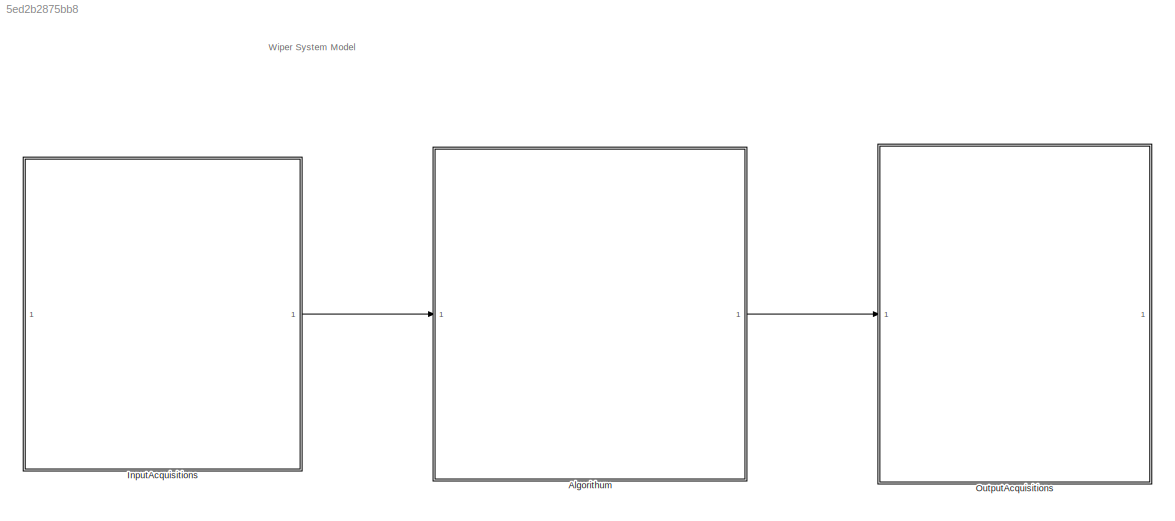
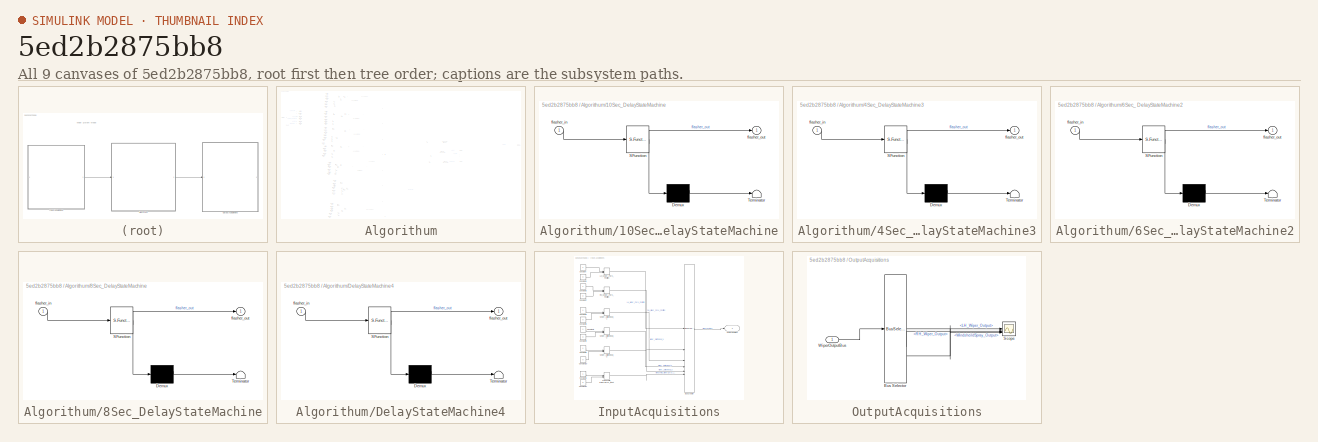
[diagram: thumbnail index - all 9 canvases of the model, root first then tree order]
MODEL slx_5ed2b2875bb8
KIND model
CONFIG AbsTol = auto
CONFIG EnableMultiTasking = off
CONFIG FixedStep = auto
CONFIG MaxStep = auto
CONFIG MinStep = auto
CONFIG PreLoadFcn = %Load Wiper Input & Output Bus\nload('Wiper_InputOutput_Bus.mat');
CONFIG RelTol = 1e-3
CONFIG SampleTimeConstraint = Unconstrained
CONFIG SolverName = VariableStepAuto
CONFIG StartTime = 0.0
CONFIG StopTime = inf
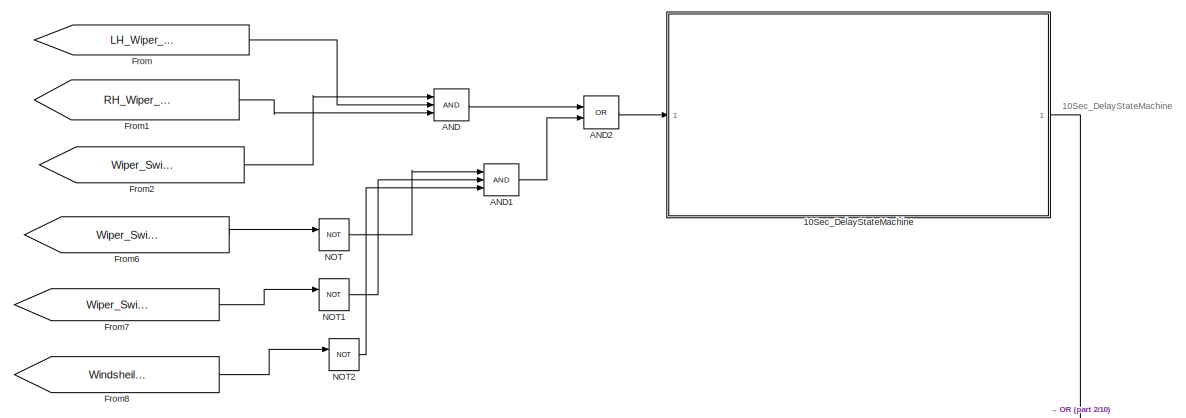
[diagram: Algorithum - part 1/10, top left region]
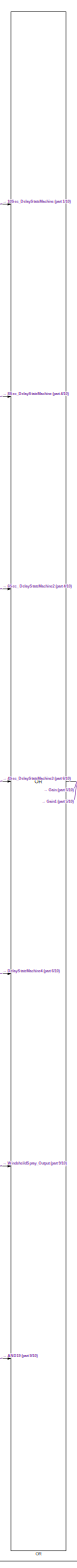
[diagram: Algorithum - part 2/10, center side, full height]
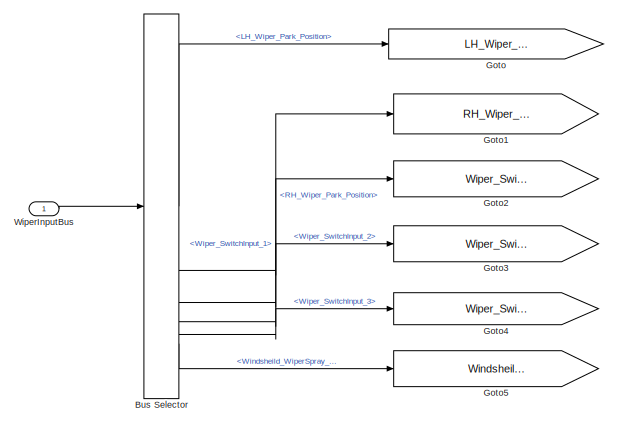
[diagram: Algorithum - part 3/10, top left region]
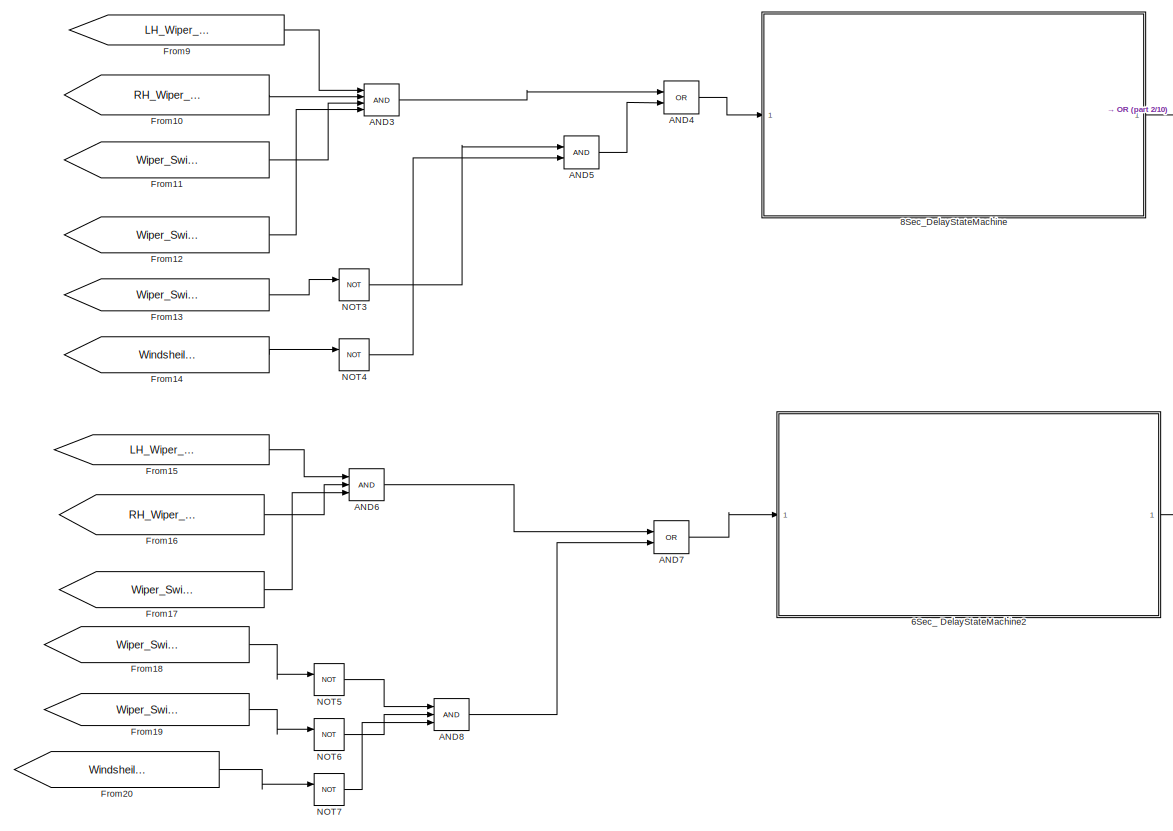
[diagram: Algorithum - part 4/10, top left region]
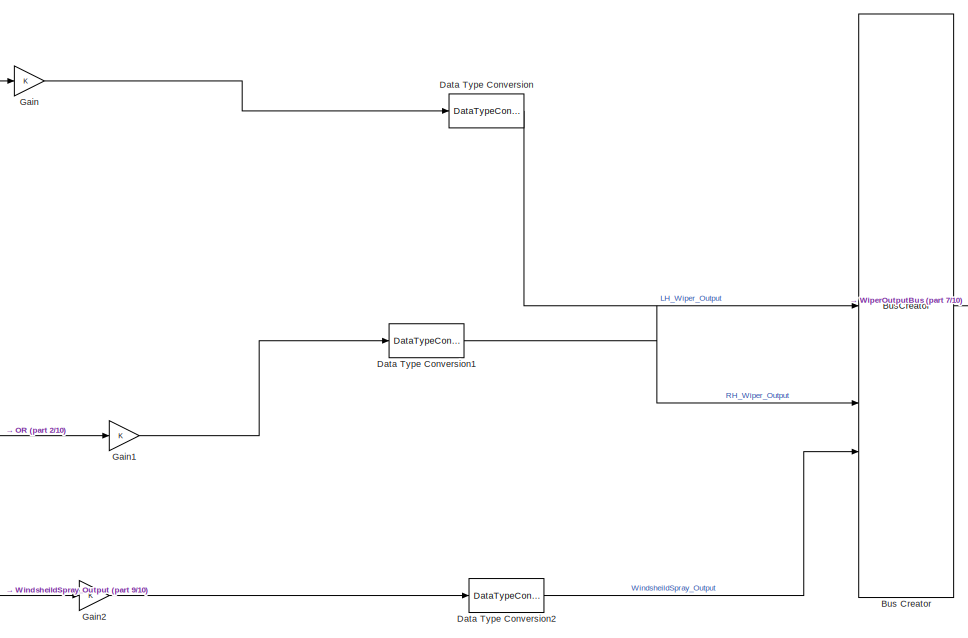
[diagram: Algorithum - part 5/10, middle right region]
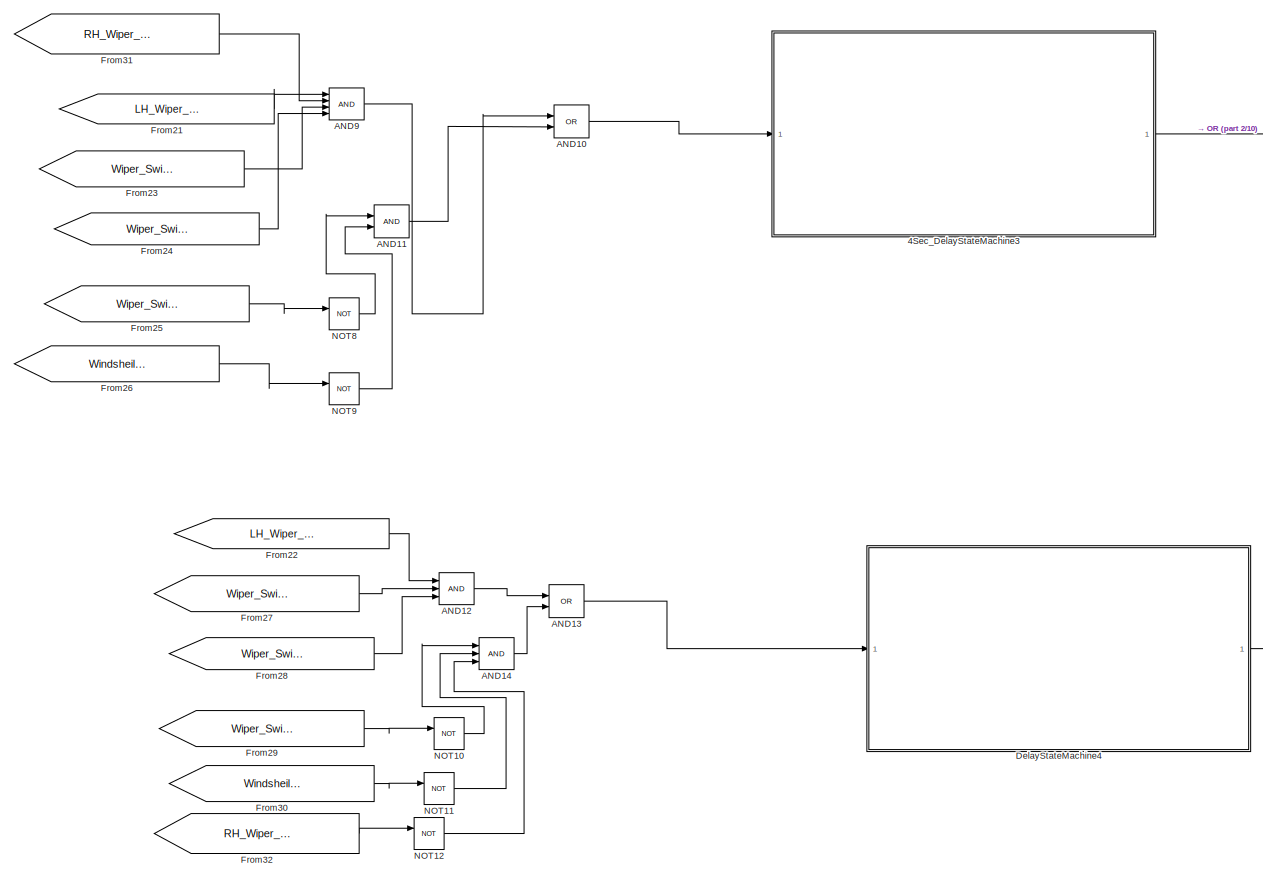
[diagram: Algorithum - part 6/10, middle left region]
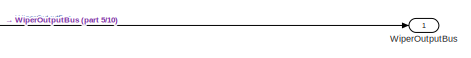
[diagram: Algorithum - part 7/10, middle right region]
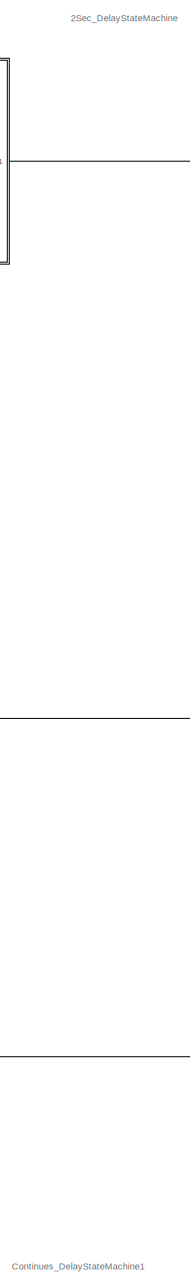
[diagram: Algorithum - part 8/10, bottom center region]
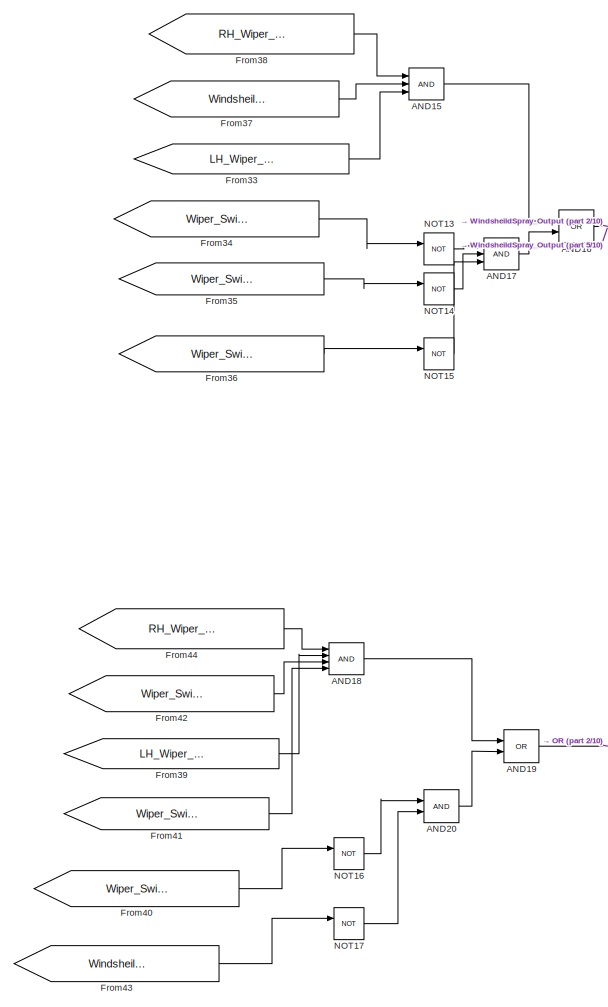
[diagram: Algorithum - part 9/10, bottom left region]
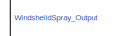
[diagram: Algorithum - part 10/10, bottom center region]
BLOCK [SubSystem] Algorithum
BLOCK [SubSystem] Algorithum/10Sec_DelayStateMachine
  ErrorFcn = Stateflow.Translate.translate
  PermitHierarchicalResolution = ExplicitOnly
  SFBlockType = Chart
  TreatAsAtomicUnit = on
BLOCK [Demux] Algorithum/10Sec_DelayStateMachine/ Demux 
  Outputs = 1
BLOCK [S-Function] Algorithum/10Sec_DelayStateMachine/ SFunction 
  EnableBusSupport = on
  FunctionName = sf_sfun
  Parameters = delay1,delay2
  PortCounts = [1 2]
  SFcnIsStateOwnerBlock = off
  SFunctionDeploymentMode = off
  Tag = Stateflow S-Function 3
BLOCK [Terminator] Algorithum/10Sec_DelayStateMachine/ Terminator 
BLOCK [Inport] Algorithum/10Sec_DelayStateMachine/flasher_in
BLOCK [Outport] Algorithum/10Sec_DelayStateMachine/flasher_out
BLOCK [SubSystem] Algorithum/4Sec_DelayStateMachine3
  ErrorFcn = Stateflow.Translate.translate
  PermitHierarchicalResolution = ExplicitOnly
  SFBlockType = Chart
  TreatAsAtomicUnit = on
BLOCK [Demux] Algorithum/4Sec_DelayStateMachine3/ Demux 
  Outputs = 1
BLOCK [S-Function] Algorithum/4Sec_DelayStateMachine3/ SFunction 
  EnableBusSupport = on
  FunctionName = sf_sfun
  Parameters = delay1,delay2
  PortCounts = [1 2]
  SFcnIsStateOwnerBlock = off
  SFunctionDeploymentMode = off
  Tag = Stateflow S-Function 4
BLOCK [Terminator] Algorithum/4Sec_DelayStateMachine3/ Terminator 
BLOCK [Inport] Algorithum/4Sec_DelayStateMachine3/flasher_in
BLOCK [Outport] Algorithum/4Sec_DelayStateMachine3/flasher_out
BLOCK [SubSystem] Algorithum/6Sec_ DelayStateMachine2
  ErrorFcn = Stateflow.Translate.translate
  PermitHierarchicalResolution = ExplicitOnly
  SFBlockType = Chart
  TreatAsAtomicUnit = on
BLOCK [Demux] Algorithum/6Sec_ DelayStateMachine2/ Demux 
  Outputs = 1
BLOCK [S-Function] Algorithum/6Sec_ DelayStateMachine2/ SFunction 
  EnableBusSupport = on
  FunctionName = sf_sfun
  Parameters = delay1,delay2
  PortCounts = [1 2]
  SFcnIsStateOwnerBlock = off
  SFunctionDeploymentMode = off
  Tag = Stateflow S-Function 2
BLOCK [Terminator] Algorithum/6Sec_ DelayStateMachine2/ Terminator 
BLOCK [Inport] Algorithum/6Sec_ DelayStateMachine2/flasher_in
BLOCK [Outport] Algorithum/6Sec_ DelayStateMachine2/flasher_out
BLOCK [SubSystem] Algorithum/8Sec_DelayStateMachine
  ErrorFcn = Stateflow.Translate.translate
  PermitHierarchicalResolution = ExplicitOnly
  SFBlockType = Chart
  TreatAsAtomicUnit = on
BLOCK [Demux] Algorithum/8Sec_DelayStateMachine/ Demux 
  Outputs = 1
BLOCK [S-Function] Algorithum/8Sec_DelayStateMachine/ SFunction 
  EnableBusSupport = on
  FunctionName = sf_sfun
  Parameters = delay1,delay2
  PortCounts = [1 2]
  SFcnIsStateOwnerBlock = off
  SFunctionDeploymentMode = off
  Tag = Stateflow S-Function 1
BLOCK [Terminator] Algorithum/8Sec_DelayStateMachine/ Terminator 
BLOCK [Inport] Algorithum/8Sec_DelayStateMachine/flasher_in
BLOCK [Outport] Algorithum/8Sec_DelayStateMachine/flasher_out
BLOCK [Logic] Algorithum/AND
  AllPortsSameDT = off
  Inputs = 3
  OutDataTypeStr = boolean
BLOCK [Logic] Algorithum/AND1
  AllPortsSameDT = off
  Inputs = 3
  OutDataTypeStr = boolean
BLOCK [Logic] Algorithum/AND10
  AllPortsSameDT = off
  Operator = OR
  OutDataTypeStr = boolean
BLOCK [Logic] Algorithum/AND11
  AllPortsSameDT = off
  OutDataTypeStr = boolean
BLOCK [Logic] Algorithum/AND12
  AllPortsSameDT = off
  Inputs = 3
  OutDataTypeStr = boolean
BLOCK [Logic] Algorithum/AND13
  AllPortsSameDT = off
  Operator = OR
  OutDataTypeStr = boolean
BLOCK [Logic] Algorithum/AND14
  AllPortsSameDT = off
  Inputs = 3
  OutDataTypeStr = boolean
BLOCK [Logic] Algorithum/AND15
  AllPortsSameDT = off
  Inputs = 3
  OutDataTypeStr = boolean
BLOCK [Logic] Algorithum/AND16
  AllPortsSameDT = off
  Operator = OR
  OutDataTypeStr = boolean
BLOCK [Logic] Algorithum/AND17
  AllPortsSameDT = off
  Inputs = 3
  OutDataTypeStr = boolean
BLOCK [Logic] Algorithum/AND18
  AllPortsSameDT = off
  Inputs = 4
  OutDataTypeStr = boolean
BLOCK [Logic] Algorithum/AND19
  AllPortsSameDT = off
  Operator = OR
  OutDataTypeStr = boolean
BLOCK [Logic] Algorithum/AND2
  AllPortsSameDT = off
  Operator = OR
  OutDataTypeStr = boolean
BLOCK [Logic] Algorithum/AND20
  AllPortsSameDT = off
  OutDataTypeStr = boolean
BLOCK [Logic] Algorithum/AND3
  AllPortsSameDT = off
  Inputs = 4
  OutDataTypeStr = boolean
BLOCK [Logic] Algorithum/AND4
  AllPortsSameDT = off
  Operator = OR
  OutDataTypeStr = boolean
BLOCK [Logic] Algorithum/AND5
  AllPortsSameDT = off
  OutDataTypeStr = boolean
BLOCK [Logic] Algorithum/AND6
  AllPortsSameDT = off
  Inputs = 3
  OutDataTypeStr = boolean
BLOCK [Logic] Algorithum/AND7
  AllPortsSameDT = off
  Operator = OR
  OutDataTypeStr = boolean
BLOCK [Logic] Algorithum/AND8
  AllPortsSameDT = off
  Inputs = 3
  OutDataTypeStr = boolean
BLOCK [Logic] Algorithum/AND9
  AllPortsSameDT = off
  Inputs = 4
  OutDataTypeStr = boolean
BLOCK [BusCreator] Algorithum/Bus Creator
  DisplayOption = bar
  InheritFromInputs = on
  Inputs = 3
  NonVirtualBus = on
  OutDataTypeStr = Bus: WiperOutputBus
BLOCK [BusSelector] Algorithum/Bus Selector
  OutputSignals = LH_Wiper_Park_Position,RH_Wiper_Park_Position,Wiper_SwitchInput_1,Wiper_SwitchInput_2,Wiper_SwitchInput_3,Windsheild_WiperSpray_Input
BLOCK [DataTypeConversion] Algorithum/Data Type Conversion
  OutDataTypeStr = boolean
  RndMeth = Floor
  SaturateOnIntegerOverflow = off
BLOCK [DataTypeConversion] Algorithum/Data Type Conversion1
  OutDataTypeStr = boolean
  RndMeth = Floor
  SaturateOnIntegerOverflow = off
BLOCK [DataTypeConversion] Algorithum/Data Type Conversion2
  OutDataTypeStr = boolean
  RndMeth = Floor
  SaturateOnIntegerOverflow = off
BLOCK [SubSystem] Algorithum/DelayStateMachine4
  ErrorFcn = Stateflow.Translate.translate
  PermitHierarchicalResolution = ExplicitOnly
  SFBlockType = Chart
  TreatAsAtomicUnit = on
BLOCK [Demux] Algorithum/DelayStateMachine4/ Demux 
  Outputs = 1
BLOCK [S-Function] Algorithum/DelayStateMachine4/ SFunction 
  EnableBusSupport = on
  FunctionName = sf_sfun
  Parameters = delay1,delay2
  PortCounts = [1 2]
  SFcnIsStateOwnerBlock = off
  SFunctionDeploymentMode = off
  Tag = Stateflow S-Function 5
BLOCK [Terminator] Algorithum/DelayStateMachine4/ Terminator 
BLOCK [Inport] Algorithum/DelayStateMachine4/flasher_in
BLOCK [Outport] Algorithum/DelayStateMachine4/flasher_out
BLOCK [From] Algorithum/From
  GotoTag = LH_Wiper_Park_Position
BLOCK [From] Algorithum/From1
  GotoTag = RH_Wiper_Park_Position
BLOCK [From] Algorithum/From10
  GotoTag = RH_Wiper_Park_Position
BLOCK [From] Algorithum/From11
  GotoTag = Wiper_SwitchInput_1
BLOCK [From] Algorithum/From12
  GotoTag = Wiper_SwitchInput_2
BLOCK [From] Algorithum/From13
  GotoTag = Wiper_SwitchInput_3
BLOCK [From] Algorithum/From14
  GotoTag = Windsheild_WiperSpray_Input
BLOCK [From] Algorithum/From15
  GotoTag = LH_Wiper_Park_Position
BLOCK [From] Algorithum/From16
  GotoTag = RH_Wiper_Park_Position
BLOCK [From] Algorithum/From17
  GotoTag = Wiper_SwitchInput_2
BLOCK [From] Algorithum/From18
  GotoTag = Wiper_SwitchInput_1
BLOCK [From] Algorithum/From19
  GotoTag = Wiper_SwitchInput_3
BLOCK [From] Algorithum/From2
  GotoTag = Wiper_SwitchInput_1
BLOCK [From] Algorithum/From20
  GotoTag = Windsheild_WiperSpray_Input
BLOCK [From] Algorithum/From21
  GotoTag = LH_Wiper_Park_Position
BLOCK [From] Algorithum/From22
  GotoTag = LH_Wiper_Park_Position
BLOCK [From] Algorithum/From23
  GotoTag = Wiper_SwitchInput_2
BLOCK [From] Algorithum/From24
  GotoTag = Wiper_SwitchInput_3
BLOCK [From] Algorithum/From25
  GotoTag = Wiper_SwitchInput_1
BLOCK [From] Algorithum/From26
  GotoTag = Windsheild_WiperSpray_Input
BLOCK [From] Algorithum/From27
  GotoTag = Wiper_SwitchInput_2
BLOCK [From] Algorithum/From28
  GotoTag = Wiper_SwitchInput_3
BLOCK [From] Algorithum/From29
  GotoTag = Wiper_SwitchInput_1
BLOCK [From] Algorithum/From30
  GotoTag = Windsheild_WiperSpray_Input
BLOCK [From] Algorithum/From31
  GotoTag = RH_Wiper_Park_Position
BLOCK [From] Algorithum/From32
  GotoTag = RH_Wiper_Park_Position
BLOCK [From] Algorithum/From33
  GotoTag = LH_Wiper_Park_Position
BLOCK [From] Algorithum/From34
  GotoTag = Wiper_SwitchInput_2
BLOCK [From] Algorithum/From35
  GotoTag = Wiper_SwitchInput_3
BLOCK [From] Algorithum/From36
  GotoTag = Wiper_SwitchInput_1
BLOCK [From] Algorithum/From37
  GotoTag = Windsheild_WiperSpray_Input
BLOCK [From] Algorithum/From38
  GotoTag = RH_Wiper_Park_Position
BLOCK [From] Algorithum/From39
  GotoTag = LH_Wiper_Park_Position
BLOCK [From] Algorithum/From40
  GotoTag = Wiper_SwitchInput_2
BLOCK [From] Algorithum/From41
  GotoTag = Wiper_SwitchInput_3
BLOCK [From] Algorithum/From42
  GotoTag = Wiper_SwitchInput_1
BLOCK [From] Algorithum/From43
  GotoTag = Windsheild_WiperSpray_Input
BLOCK [From] Algorithum/From44
  GotoTag = RH_Wiper_Park_Position
BLOCK [From] Algorithum/From6
  GotoTag = Wiper_SwitchInput_2
BLOCK [From] Algorithum/From7
  GotoTag = Wiper_SwitchInput_3
BLOCK [From] Algorithum/From8
  GotoTag = Windsheild_WiperSpray_Input
BLOCK [From] Algorithum/From9
  GotoTag = LH_Wiper_Park_Position
BLOCK [Gain] Algorithum/Gain
BLOCK [Gain] Algorithum/Gain1
BLOCK [Gain] Algorithum/Gain2
BLOCK [Goto] Algorithum/Goto
  GotoTag = LH_Wiper_Park_Position
BLOCK [Goto] Algorithum/Goto1
  GotoTag = RH_Wiper_Park_Position
BLOCK [Goto] Algorithum/Goto2
  GotoTag = Wiper_SwitchInput_1
BLOCK [Goto] Algorithum/Goto3
  GotoTag = Wiper_SwitchInput_2
BLOCK [Goto] Algorithum/Goto4
  GotoTag = Wiper_SwitchInput_3
BLOCK [Goto] Algorithum/Goto5
  GotoTag = Windsheild_WiperSpray_Input
BLOCK [Logic] Algorithum/NOT
  AllPortsSameDT = off
  IconShape = distinctive
  Operator = NOT
  OutDataTypeStr = boolean
BLOCK [Logic] Algorithum/NOT1
  AllPortsSameDT = off
  IconShape = distinctive
  Operator = NOT
  OutDataTypeStr = boolean
BLOCK [Logic] Algorithum/NOT10
  AllPortsSameDT = off
  IconShape = distinctive
  Operator = NOT
  OutDataTypeStr = boolean
BLOCK [Logic] Algorithum/NOT11
  AllPortsSameDT = off
  IconShape = distinctive
  Operator = NOT
  OutDataTypeStr = boolean
BLOCK [Logic] Algorithum/NOT12
  AllPortsSameDT = off
  IconShape = distinctive
  Operator = NOT
  OutDataTypeStr = boolean
BLOCK [Logic] Algorithum/NOT13
  AllPortsSameDT = off
  IconShape = distinctive
  Operator = NOT
  OutDataTypeStr = boolean
BLOCK [Logic] Algorithum/NOT14
  AllPortsSameDT = off
  IconShape = distinctive
  Operator = NOT
  OutDataTypeStr = boolean
BLOCK [Logic] Algorithum/NOT15
  AllPortsSameDT = off
  IconShape = distinctive
  Operator = NOT
  OutDataTypeStr = boolean
BLOCK [Logic] Algorithum/NOT16
  AllPortsSameDT = off
  IconShape = distinctive
  Operator = NOT
  OutDataTypeStr = boolean
BLOCK [Logic] Algorithum/NOT17
  AllPortsSameDT = off
  IconShape = distinctive
  Operator = NOT
  OutDataTypeStr = boolean
BLOCK [Logic] Algorithum/NOT2
  AllPortsSameDT = off
  IconShape = distinctive
  Operator = NOT
  OutDataTypeStr = boolean
BLOCK [Logic] Algorithum/NOT3
  AllPortsSameDT = off
  IconShape = distinctive
  Operator = NOT
  OutDataTypeStr = boolean
BLOCK [Logic] Algorithum/NOT4
  AllPortsSameDT = off
  IconShape = distinctive
  Operator = NOT
  OutDataTypeStr = boolean
BLOCK [Logic] Algorithum/NOT5
  AllPortsSameDT = off
  IconShape = distinctive
  Operator = NOT
  OutDataTypeStr = boolean
BLOCK [Logic] Algorithum/NOT6
  AllPortsSameDT = off
  IconShape = distinctive
  Operator = NOT
  OutDataTypeStr = boolean
BLOCK [Logic] Algorithum/NOT7
  AllPortsSameDT = off
  IconShape = distinctive
  Operator = NOT
  OutDataTypeStr = boolean
BLOCK [Logic] Algorithum/NOT8
  AllPortsSameDT = off
  IconShape = distinctive
  Operator = NOT
  OutDataTypeStr = boolean
BLOCK [Logic] Algorithum/NOT9
  AllPortsSameDT = off
  IconShape = distinctive
  Operator = NOT
  OutDataTypeStr = boolean
BLOCK [Logic] Algorithum/OR
  AllPortsSameDT = off
  Inputs = 7
  Operator = OR
  OutDataTypeStr = boolean
BLOCK [Inport] Algorithum/WiperInputBus
  OutDataTypeStr = Bus: WiperInputBus
BLOCK [Outport] Algorithum/WiperOutputBus
  OutDataTypeStr = Bus: WiperOutputBus
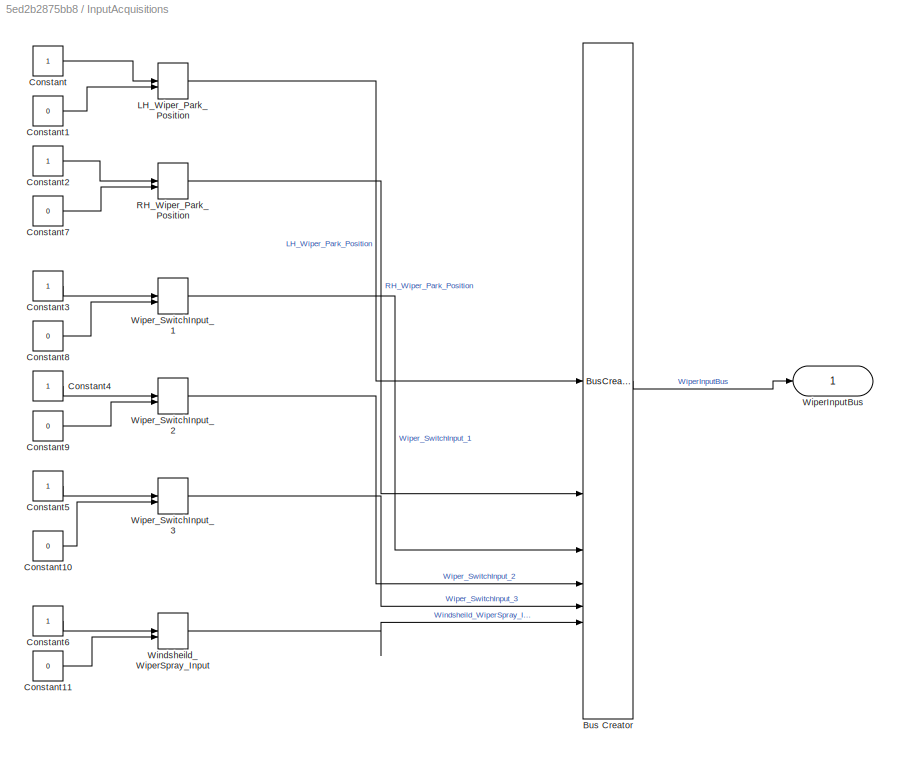
BLOCK [SubSystem] InputAcquisitions
BLOCK [BusCreator] InputAcquisitions/Bus Creator
  DisplayOption = bar
  InheritFromInputs = on
  Inputs = 6
  NonVirtualBus = on
  OutDataTypeStr = Bus: WiperInputBus
BLOCK [Constant] InputAcquisitions/Constant
  OutDataTypeStr = boolean
BLOCK [Constant] InputAcquisitions/Constant1
  OutDataTypeStr = boolean
  Value = 0
BLOCK [Constant] InputAcquisitions/Constant10
  OutDataTypeStr = boolean
  Value = 0
BLOCK [Constant] InputAcquisitions/Constant11
  OutDataTypeStr = boolean
  Value = 0
BLOCK [Constant] InputAcquisitions/Constant2
  OutDataTypeStr = boolean
BLOCK [Constant] InputAcquisitions/Constant3
  OutDataTypeStr = boolean
BLOCK [Constant] InputAcquisitions/Constant4
  OutDataTypeStr = boolean
BLOCK [Constant] InputAcquisitions/Constant5
  OutDataTypeStr = boolean
BLOCK [Constant] InputAcquisitions/Constant6
  OutDataTypeStr = boolean
BLOCK [Constant] InputAcquisitions/Constant7
  OutDataTypeStr = boolean
  Value = 0
BLOCK [Constant] InputAcquisitions/Constant8
  OutDataTypeStr = boolean
  Value = 0
BLOCK [Constant] InputAcquisitions/Constant9
  OutDataTypeStr = boolean
  Value = 0
BLOCK [ManualSwitch] InputAcquisitions/LH_Wiper_Park_Position
  CurrentSetting = 0
BLOCK [ManualSwitch] InputAcquisitions/RH_Wiper_Park_Position
  CurrentSetting = 0
BLOCK [ManualSwitch] InputAcquisitions/Windsheild_WiperSpray_Input
  CurrentSetting = 0
BLOCK [Outport] InputAcquisitions/WiperInputBus
  OutDataTypeStr = Bus: WiperInputBus
BLOCK [ManualSwitch] InputAcquisitions/Wiper_SwitchInput_1
  CurrentSetting = 0
BLOCK [ManualSwitch] InputAcquisitions/Wiper_SwitchInput_2
  CurrentSetting = 0
BLOCK [ManualSwitch] InputAcquisitions/Wiper_SwitchInput_3
  CurrentSetting = 0
BLOCK [SubSystem] OutputAcquisitions
BLOCK [BusSelector] OutputAcquisitions/Bus Selector
  OutputSignals = LH_Wiper_Output,RH_Wiper_Output,WindsheildSpray_Output
BLOCK [Scope] OutputAcquisitions/Scope
  Floating = off
  NumInputPorts = 3
  ScopeSpecificationString = Simulink.scopes.TimeScopeBlockCfg('CurrentConfiguration', extmgr.ConfigurationSet(extmgr.Configuration('Core','General UI',true),extmgr.Configuration('Core','Source UI',true),extmgr.Configuration('Sources','WiredSimulink',true),extmgr.Configuration('Visuals','Time Domain',true,'SerializedDisplays',{struct('MinYLimReal','0.9','MaxYLimReal','1.1','YLabelReal','','MinYLimMag','0.9','MaxYLimMag','1.1'...<+2620ch>
BLOCK [Inport] OutputAcquisitions/WiperOutputBus
  OutDataTypeStr = Bus: WiperOutputBus
ANNOTATION (root): Wiper System Model
ANNOTATION Algorithum: 10Sec_DelayStateMachine
ANNOTATION Algorithum: 2Sec_DelayStateMachine
ANNOTATION Algorithum: Continues_DelayStateMachine1
LINE Algorithum/10Sec_DelayStateMachine:1 -> Algorithum/OR:1
LINE Algorithum/4Sec_DelayStateMachine3:1 -> Algorithum/OR:4
LINE Algorithum/6Sec_ DelayStateMachine2:1 -> Algorithum/OR:3
LINE Algorithum/8Sec_DelayStateMachine:1 -> Algorithum/OR:2
LINE Algorithum/AND10:1 -> Algorithum/4Sec_DelayStateMachine3:1
LINE Algorithum/AND11:1 -> Algorithum/AND10:2
LINE Algorithum/AND12:1 -> Algorithum/AND13:1
LINE Algorithum/AND13:1 -> Algorithum/DelayStateMachine4:1
LINE Algorithum/AND14:1 -> Algorithum/AND13:2
LINE Algorithum/AND15:1 -> Algorithum/AND16:1
NET Algorithum/AND16:1 -> Algorithum/Gain2:1, Algorithum/OR:6
LINE Algorithum/AND17:1 -> Algorithum/AND16:2
LINE Algorithum/AND18:1 -> Algorithum/AND19:1
LINE Algorithum/AND19:1 -> Algorithum/OR:7
LINE Algorithum/AND1:1 -> Algorithum/AND2:2
LINE Algorithum/AND20:1 -> Algorithum/AND19:2
LINE Algorithum/AND2:1 -> Algorithum/10Sec_DelayStateMachine:1
LINE Algorithum/AND3:1 -> Algorithum/AND4:1
LINE Algorithum/AND4:1 -> Algorithum/8Sec_DelayStateMachine:1
LINE Algorithum/AND5:1 -> Algorithum/AND4:2
LINE Algorithum/AND6:1 -> Algorithum/AND7:1
LINE Algorithum/AND7:1 -> Algorithum/6Sec_ DelayStateMachine2:1
LINE Algorithum/AND8:1 -> Algorithum/AND7:2
LINE Algorithum/AND9:1 -> Algorithum/AND10:1
LINE Algorithum/AND:1 -> Algorithum/AND2:1
LINE Algorithum/Bus Creator:1 -> Algorithum/WiperOutputBus:1
LINE Algorithum/Bus Selector:1 -> Algorithum/Goto:1
LINE Algorithum/Bus Selector:2 -> Algorithum/Goto1:1
LINE Algorithum/Bus Selector:3 -> Algorithum/Goto2:1
LINE Algorithum/Bus Selector:4 -> Algorithum/Goto3:1
LINE Algorithum/Bus Selector:5 -> Algorithum/Goto4:1
LINE Algorithum/Bus Selector:6 -> Algorithum/Goto5:1
LINE Algorithum/Data Type Conversion1:1 -> Algorithum/Bus Creator:2
LINE Algorithum/Data Type Conversion2:1 -> Algorithum/Bus Creator:3
LINE Algorithum/Data Type Conversion:1 -> Algorithum/Bus Creator:1
LINE Algorithum/DelayStateMachine4:1 -> Algorithum/OR:5
LINE Algorithum/From10:1 -> Algorithum/AND3:2
LINE Algorithum/From11:1 -> Algorithum/AND3:3
LINE Algorithum/From12:1 -> Algorithum/AND3:4
LINE Algorithum/From13:1 -> Algorithum/NOT3:1
LINE Algorithum/From14:1 -> Algorithum/NOT4:1
LINE Algorithum/From15:1 -> Algorithum/AND6:1
LINE Algorithum/From16:1 -> Algorithum/AND6:2
LINE Algorithum/From17:1 -> Algorithum/AND6:3
LINE Algorithum/From18:1 -> Algorithum/NOT5:1
LINE Algorithum/From19:1 -> Algorithum/NOT6:1
LINE Algorithum/From1:1 -> Algorithum/AND:3
LINE Algorithum/From20:1 -> Algorithum/NOT7:1
LINE Algorithum/From21:1 -> Algorithum/AND9:1
LINE Algorithum/From22:1 -> Algorithum/AND12:1
LINE Algorithum/From23:1 -> Algorithum/AND9:3
LINE Algorithum/From24:1 -> Algorithum/AND9:4
LINE Algorithum/From25:1 -> Algorithum/NOT8:1
LINE Algorithum/From26:1 -> Algorithum/NOT9:1
LINE Algorithum/From27:1 -> Algorithum/AND12:2
LINE Algorithum/From28:1 -> Algorithum/AND12:3
LINE Algorithum/From29:1 -> Algorithum/NOT10:1
LINE Algorithum/From2:1 -> Algorithum/AND:1
LINE Algorithum/From30:1 -> Algorithum/NOT11:1
LINE Algorithum/From31:1 -> Algorithum/AND9:2
LINE Algorithum/From32:1 -> Algorithum/NOT12:1
LINE Algorithum/From33:1 -> Algorithum/AND15:3
LINE Algorithum/From34:1 -> Algorithum/NOT13:1
LINE Algorithum/From35:1 -> Algorithum/NOT14:1
LINE Algorithum/From36:1 -> Algorithum/NOT15:1
LINE Algorithum/From37:1 -> Algorithum/AND15:2
LINE Algorithum/From38:1 -> Algorithum/AND15:1
LINE Algorithum/From39:1 -> Algorithum/AND18:2
LINE Algorithum/From40:1 -> Algorithum/NOT16:1
LINE Algorithum/From41:1 -> Algorithum/AND18:4
LINE Algorithum/From42:1 -> Algorithum/AND18:3
LINE Algorithum/From43:1 -> Algorithum/NOT17:1
LINE Algorithum/From44:1 -> Algorithum/AND18:1
LINE Algorithum/From6:1 -> Algorithum/NOT:1
LINE Algorithum/From7:1 -> Algorithum/NOT1:1
LINE Algorithum/From8:1 -> Algorithum/NOT2:1
LINE Algorithum/From9:1 -> Algorithum/AND3:1
LINE Algorithum/From:1 -> Algorithum/AND:2
LINE Algorithum/Gain1:1 -> Algorithum/Data Type Conversion1:1
LINE Algorithum/Gain2:1 -> Algorithum/Data Type Conversion2:1
LINE Algorithum/Gain:1 -> Algorithum/Data Type Conversion:1
LINE Algorithum/NOT10:1 -> Algorithum/AND14:1
LINE Algorithum/NOT11:1 -> Algorithum/AND14:2
LINE Algorithum/NOT12:1 -> Algorithum/AND14:3
LINE Algorithum/NOT13:1 -> Algorithum/AND17:1
LINE Algorithum/NOT14:1 -> Algorithum/AND17:2
LINE Algorithum/NOT15:1 -> Algorithum/AND17:3
LINE Algorithum/NOT16:1 -> Algorithum/AND20:1
LINE Algorithum/NOT17:1 -> Algorithum/AND20:2
LINE Algorithum/NOT1:1 -> Algorithum/AND1:2
LINE Algorithum/NOT2:1 -> Algorithum/AND1:3
LINE Algorithum/NOT3:1 -> Algorithum/AND5:1
LINE Algorithum/NOT4:1 -> Algorithum/AND5:2
LINE Algorithum/NOT5:1 -> Algorithum/AND8:1
LINE Algorithum/NOT6:1 -> Algorithum/AND8:2
LINE Algorithum/NOT7:1 -> Algorithum/AND8:3
LINE Algorithum/NOT8:1 -> Algorithum/AND11:1
LINE Algorithum/NOT9:1 -> Algorithum/AND11:2
LINE Algorithum/NOT:1 -> Algorithum/AND1:1
NET Algorithum/OR:1 -> Algorithum/Gain1:1, Algorithum/Gain:1
LINE Algorithum/WiperInputBus:1 -> Algorithum/Bus Selector:1
LINE Algorithum:1 -> OutputAcquisitions:1
LINE InputAcquisitions/Bus Creator:1 -> InputAcquisitions/WiperInputBus:1
LINE InputAcquisitions/Constant10:1 -> InputAcquisitions/Wiper_SwitchInput_3:2
LINE InputAcquisitions/Constant11:1 -> InputAcquisitions/Windsheild_WiperSpray_Input:2
LINE InputAcquisitions/Constant1:1 -> InputAcquisitions/LH_Wiper_Park_Position:2
LINE InputAcquisitions/Constant2:1 -> InputAcquisitions/RH_Wiper_Park_Position:1
LINE InputAcquisitions/Constant3:1 -> InputAcquisitions/Wiper_SwitchInput_1:1
LINE InputAcquisitions/Constant4:1 -> InputAcquisitions/Wiper_SwitchInput_2:1
LINE InputAcquisitions/Constant5:1 -> InputAcquisitions/Wiper_SwitchInput_3:1
LINE InputAcquisitions/Constant6:1 -> InputAcquisitions/Windsheild_WiperSpray_Input:1
LINE InputAcquisitions/Constant7:1 -> InputAcquisitions/RH_Wiper_Park_Position:2
LINE InputAcquisitions/Constant8:1 -> InputAcquisitions/Wiper_SwitchInput_1:2
LINE InputAcquisitions/Constant9:1 -> InputAcquisitions/Wiper_SwitchInput_2:2
LINE InputAcquisitions/Constant:1 -> InputAcquisitions/LH_Wiper_Park_Position:1
LINE InputAcquisitions/LH_Wiper_Park_Position:1 -> InputAcquisitions/Bus Creator:1
LINE InputAcquisitions/RH_Wiper_Park_Position:1 -> InputAcquisitions/Bus Creator:2
LINE InputAcquisitions/Windsheild_WiperSpray_Input:1 -> InputAcquisitions/Bus Creator:6
LINE InputAcquisitions/Wiper_SwitchInput_1:1 -> InputAcquisitions/Bus Creator:3
LINE InputAcquisitions/Wiper_SwitchInput_2:1 -> InputAcquisitions/Bus Creator:4
LINE InputAcquisitions/Wiper_SwitchInput_3:1 -> InputAcquisitions/Bus Creator:5
LINE InputAcquisitions:1 -> Algorithum:1
LINE OutputAcquisitions/Bus Selector:1 -> OutputAcquisitions/Scope:1
LINE OutputAcquisitions/Bus Selector:2 -> OutputAcquisitions/Scope:2
LINE OutputAcquisitions/Bus Selector:3 -> OutputAcquisitions/Scope:3
LINE OutputAcquisitions/WiperOutputBus:1 -> OutputAcquisitions/Bus Selector:1
note: NET lines group one-source signal fan-out (src -> all destinations, sorted); 1:1 wires keep LINE
CHART Algorithum/8Sec_DelayStateMachine states=3 transitions=5
  STATE_LABEL 'Idle\nentry:\nflasher_out = 0;\n'
  STATE_LABEL 'OFF\nentry:\nflasher_out=0;\n'
  STATE_LABEL 'ON\nentry:\nflasher_out = 1;'
CHART Algorithum/6Sec_ DelayStateMachine2 states=3 transitions=5
  STATE_LABEL 'Idle\nentry:\nflasher_out = 0;\n'
  STATE_LABEL 'OFF\nentry:\nflasher_out=0;\n'
  STATE_LABEL 'ON\nentry:\nflasher_out = 1;'
CHART Algorithum/10Sec_DelayStateMachine states=3 transitions=5
  STATE_LABEL 'Idle\nentry:\nflasher_out = 0;\n'
  STATE_LABEL 'OFF\nentry:\nflasher_out=0;\n'
  STATE_LABEL 'ON\nentry:\nflasher_out = 1;'
CHART Algorithum/4Sec_DelayStateMachine3 states=3 transitions=5
  STATE_LABEL 'Idle\nentry:\nflasher_out = 0;\n'
  STATE_LABEL 'OFF\nentry:\nflasher_out=0;\n'
  STATE_LABEL 'ON\nentry:\nflasher_out = 1;'
CHART Algorithum/DelayStateMachine4 states=3 transitions=5
  STATE_LABEL 'Idle\nentry:\nflasher_out = 0;\n'
  STATE_LABEL 'OFF\nentry:\nflasher_out=0;\n'
  STATE_LABEL 'ON\nentry:\nflasher_out = 1;'
CHART  states=0 transitions=0
CHART  states=0 transitions=0
CHART  states=0 transitions=0
CHART  states=0 transitions=0
CHART  states=0 transitions=0
